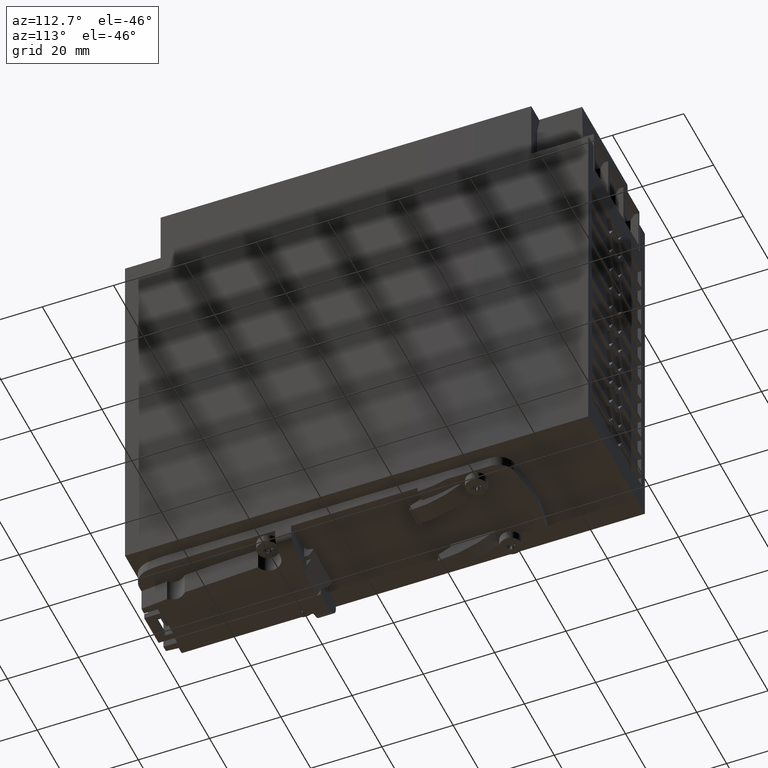
[diagram: clean part render]
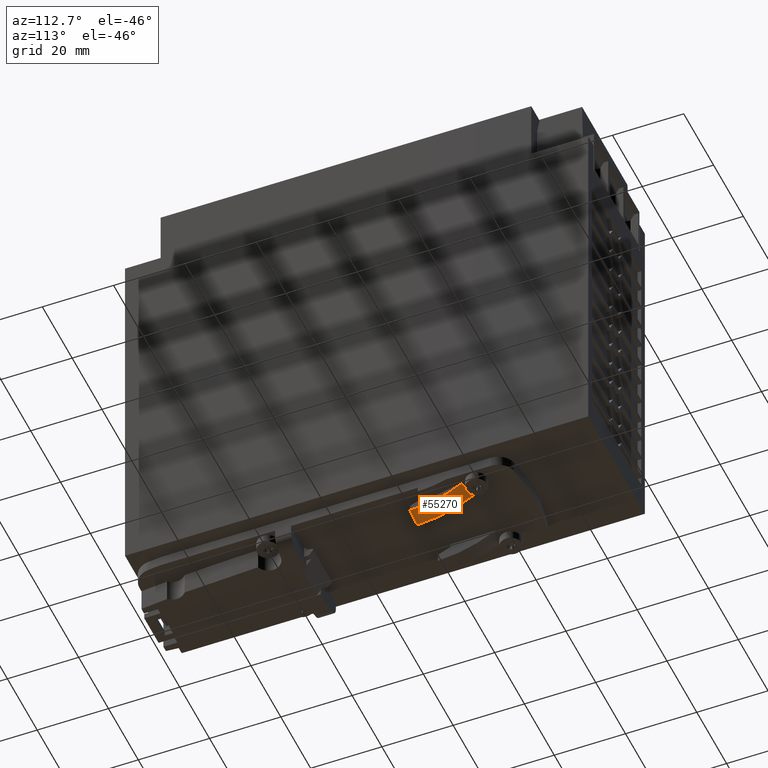
[diagram: same view with one face highlighted and labeled with its STEP entity id]
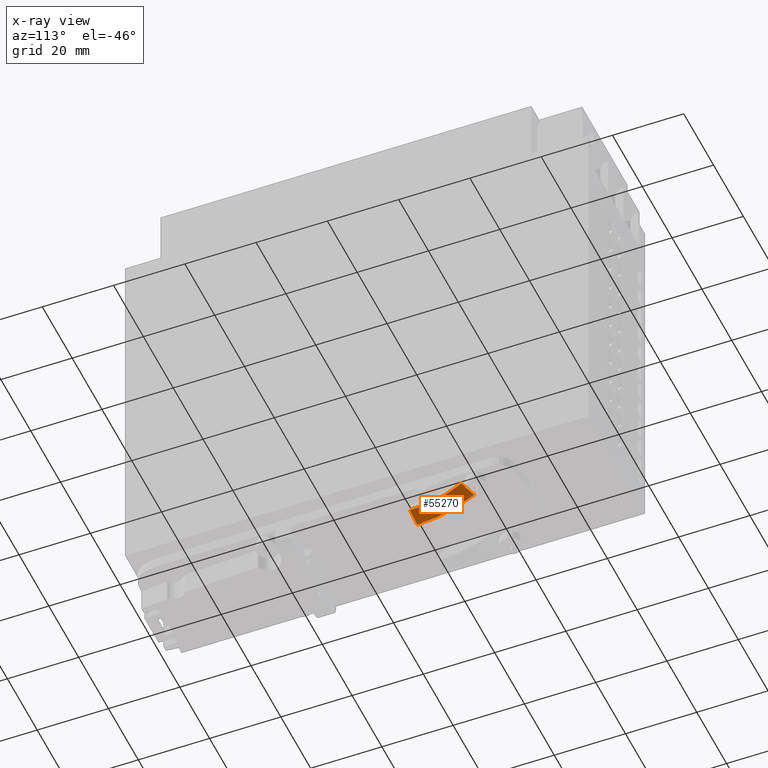
[diagram: x-ray of the same camera — body ghosted, the highlighted face saturated]
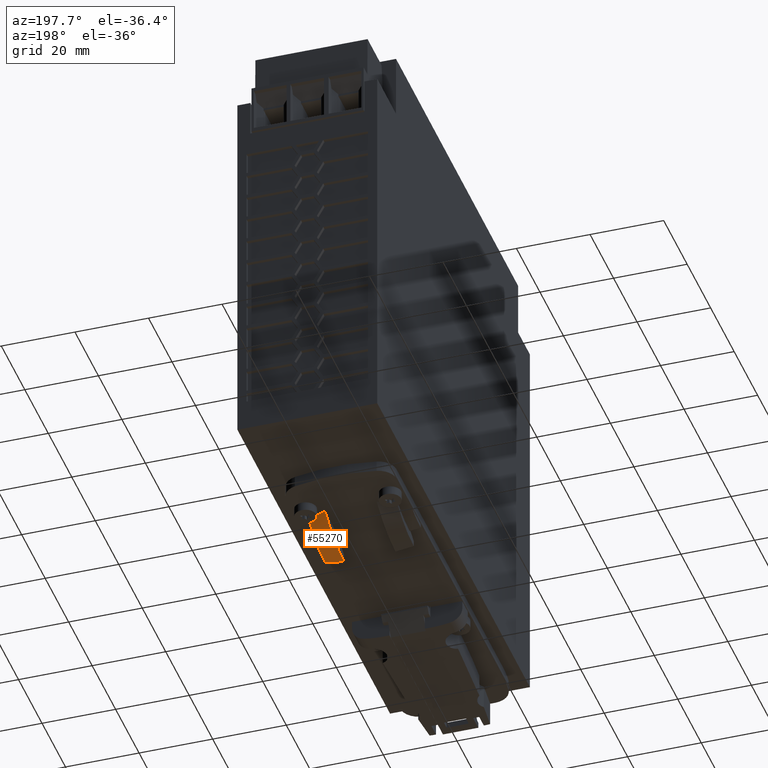
[diagram: same view with one face highlighted and labeled with its STEP entity id]
A machine part, auxiliary view. The second image highlights one B-rep face of the part: STEP entity #55270.
The next image is the same camera in x-ray: the body ghosted, the highlighted face saturated — about 0% of this face is hidden behind the body in this view.
A second angle (auxiliary view) of the same face is appended — the face is thin or edge-on in the first view.
In plain terms, the highlighted face is a freeform B-spline surface patch.
Its self-contained STEP definition (entity closure, byte-faithful):
#20160=CARTESIAN_POINT('',(29.9990428940869,-7.14956815838404,
52.1511138754406));
#20170=VERTEX_POINT('',#20160);
#20680=CARTESIAN_POINT('',(29.9988432689198,-2.99999999999322,
37.629561718788));
#20690=VERTEX_POINT('',#20680);
#20720=CARTESIAN_POINT('',(29.9988432689198,-2.99999999999322,
37.629561718788));
#20730=CARTESIAN_POINT('',(29.9988435010103,-3.01061329289596,
37.6464449306892));
#20740=CARTESIAN_POINT('',(29.9988437911244,-3.02387979335336,
37.6675490187684));
#20750=CARTESIAN_POINT('',(29.9988441392579,-3.03979999165183,
37.692873673901));
#20760=CARTESIAN_POINT('',(29.998844371353,-3.05041275244708,
37.7097572195255));
#20770=CARTESIAN_POINT('',(29.9988450099519,-3.07955860989106,
37.7562115232163));
#20780=CARTESIAN_POINT('',(29.9988465217577,-3.14817094458048,
37.8661864657901));
#20790=CARTESIAN_POINT('',(29.9988497904429,-3.29448756481804,
38.103964016374));
#20800=CARTESIAN_POINT('',(29.9988544955177,-3.49929214509798,
38.4462304265503));
#20810=CARTESIAN_POINT('',(29.998860197564,-3.73813166517722,
38.8610206225314));
#20820=CARTESIAN_POINT('',(29.9988659552992,-3.9699080460308,
39.2798618618126));
#20830=CARTESIAN_POINT('',(29.9988717676798,-4.19445598430107,
39.7026782307787));
#20840=CARTESIAN_POINT('',(29.9988776337045,-4.41162122924231,
40.1293968866747));
#20850=CARTESIAN_POINT('',(29.9988835515825,-4.62123093929096,
40.5598875699331));
#20860=CARTESIAN_POINT('',(29.9988895191878,-4.82311355697181,
40.9939956178396));
#20870=CARTESIAN_POINT('',(29.9988955349365,-5.01713089167601,
41.4316058125422));
#20880=CARTESIAN_POINT('',(29.9989015972212,-5.20315564370554,
41.8726012247851));
#20890=CARTESIAN_POINT('',(29.99890770519,-5.38109184470223,
42.3169198909964));
#20900=CARTESIAN_POINT('',(29.9989138576633,-5.55084255780733,
42.7644759935697));
#20910=CARTESIAN_POINT('',(29.9989200528304,-5.71230209732213,
43.2151378163429));
#20920=CARTESIAN_POINT('',(29.9989262887723,-5.86537448283512,
43.6687657737252));
#20930=CARTESIAN_POINT('',(29.9989325628827,-6.00996145547079,
44.1251702516775));
#20940=CARTESIAN_POINT('',(29.9989388730794,-6.14599167570736,
44.5841997998722));
#20950=CARTESIAN_POINT('',(29.9989452171935,-6.27340467202629,
45.0456966450311));
#20960=CARTESIAN_POINT('',(29.9989515930013,-6.39215213262768,
45.5094990134421));
#20970=CARTESIAN_POINT('',(29.9989579982331,-6.502197858576,
45.9754418034408));
#20980=CARTESIAN_POINT('',(29.9989644299534,-6.60350812207608,
46.4433114807591));
#20990=CARTESIAN_POINT('',(29.9989708858526,-6.69607490146033,
46.9129400256928));
#21000=CARTESIAN_POINT('',(29.9989773636303,-6.77990270145689,
47.3841601059883));
#21010=CARTESIAN_POINT('',(29.9989838616125,-6.85501385834644,
47.8568499409711));
#21020=CARTESIAN_POINT('',(29.9989903780519,-6.92143913156962,
48.3308824259237));
#21030=CARTESIAN_POINT('',(29.9989969106229,-6.97921211703975,
48.8060883927318));
#21040=CARTESIAN_POINT('',(29.9990034569327,-7.02837726203661,
49.282293775189));
#21050=CARTESIAN_POINT('',(29.9990100141919,-7.06898878952293,
49.7592956616497));
#21060=CARTESIAN_POINT('',(29.9990165804066,-7.10111715123689,
50.2369490112174));
#21070=CARTESIAN_POINT('',(29.9990231535081,-7.12484039362435,
50.7151033300489));
#21080=CARTESIAN_POINT('',(29.9990286352208,-7.1376784198465,
51.1138655610219));
#21090=CARTESIAN_POINT('',(29.9990324735701,-7.1430671954349,
51.3930828112759));
#21100=CARTESIAN_POINT('',(29.9990343930246,-7.14486828455967,
51.5327117936706));
#21110=CARTESIAN_POINT('',(29.999035352796,-7.1455455135256,
51.6025294900592));
#21120=CARTESIAN_POINT('',(29.9990358326893,-7.14582933711426,
51.6374388960961));
#21130=CARTESIAN_POINT('',(29.999036106916,-7.14597434926229,
51.6573872706393));
#21140=CARTESIAN_POINT('',(29.9990365182584,-7.14619200815438,
51.6873099990598));
#21150=CARTESIAN_POINT('',(29.9990371352731,-7.1465185894723,
51.732194173951));
#21160=CARTESIAN_POINT('',(29.9990382321892,-7.14709921949189,
51.8119883458737));
#21170=CARTESIAN_POINT('',(29.9990401517938,-7.14811555010448,
51.9516282479859));
#21180=CARTESIAN_POINT('',(29.9990417971694,-7.14898702210077,
52.0713196073887));
#21190=CARTESIAN_POINT('',(29.9990428940869,-7.14956815838404,
52.1511138754406));
#21200=B_SPLINE_CURVE_WITH_KNOTS('',3,(#20720,#20730,#20740,#20750,
#20760,#20770,#20780,#20790,#20800,#20810,#20820,#20830,#20840,#20850,
#20860,#20870,#20880,#20890,#20900,#20910,#20920,#20930,#20940,#20950,
#20960,#20970,#20980,#20990,#21000,#21010,#21020,#21030,#21040,#21050,
#21060,#21070,#21080,#21090,#21100,#21110,#21120,#21130,#21140,#21150,
#21160,#21170,#21180,#21190),.UNSPECIFIED.,.F.,.F.,(4,1,1,1,1,1,1,1,1,1,
1,1,1,1,1,1,1,1,1,1,1,1,1,1,1,1,1,1,1,1,1,1,1,1,1,1,1,1,1,1,1,1,1,1,1,4)
,(0.,0.003905600555611,0.004882000751247,0.005858400886435,
0.007811200857041,0.015622386329965,0.031244696350425,0.062489243067203,
0.093734725051775,0.124980628209155,0.156235787937612,0.187490835399581,
0.218747684398216,0.250004562597735,0.281248862206703,0.312493153012304,
0.343737010302043,0.374980869880632,0.406233566534538,0.43748626272193,
0.468739123164705,0.499991983641099,0.531245048498542,0.562498116282856,
0.59375101659384,0.625003920680431,0.656247411611433,0.687490895739307,
0.718734821069548,0.749978757727738,0.78123084895685,0.812482889705592,
0.843733115987652,0.874983533566115,0.906236631516764,0.937489015284193,
0.953116417651247,0.960930269401447,0.964837209711532,0.966790681863402,
0.967767418256293,0.968744154674818,0.972651132274918,0.976558110054992,
0.984372067597968,1.),.UNSPECIFIED.);
#21210=EDGE_CURVE('',#20690,#20170,#21200,.T.);
#39700=CARTESIAN_POINT('',(24.9988224125072,-2.9999999999933,
36.1124152225848));
#39710=VERTEX_POINT('',#39700);
#39740=CARTESIAN_POINT('',(24.9988224125072,-2.99999999999117,
36.1124152225856));
#39750=CARTESIAN_POINT('',(24.9992351648935,-2.99999999999117,
36.1125174724464));
#39760=CARTESIAN_POINT('',(25.0000602118053,-2.99999999999117,
36.1127238174296));
#39770=CARTESIAN_POINT('',(25.0017104407931,-2.99999999999117,
36.1131359607082));
#39780=CARTESIAN_POINT('',(25.0045982703319,-2.99999999999117,
36.1138575109033));
#39790=CARTESIAN_POINT('',(25.0103739853935,-2.99999999999117,
36.1153003987599));
#39800=CARTESIAN_POINT('',(25.0219252524021,-2.99999999999117,
36.1181868587105));
#39810=CARTESIAN_POINT('',(25.0450281063023,-2.99999999999117,
36.1239585565535));
#39820=CARTESIAN_POINT('',(25.07143152094,-2.99999999999117,
36.1305553079892));
#39830=CARTESIAN_POINT('',(25.0978351252559,-2.99999999999117,
36.1371524325715));
#39840=CARTESIAN_POINT('',(25.1242394728204,-2.99999999999117,
36.143748804899));
#39850=CARTESIAN_POINT('',(25.1572414024179,-2.99999999999117,
36.1520115383169));
#39860=CARTESIAN_POINT('',(25.1968357713206,-2.99999999999117,
36.1619610841058));
#39870=CARTESIAN_POINT('',(25.2496185124795,-2.99999999999117,
36.175270237287));
#39880=CARTESIAN_POINT('',(25.3947373406217,-2.99999999999117,
36.2120511924231));
#39890=CARTESIAN_POINT('',(25.5792542201574,-2.99999999999117,
36.2596234820126));
#39900=CARTESIAN_POINT('',(25.7898717376904,-2.99999999999117,
36.3150253613193));
#39910=CARTESIAN_POINT('',(26.0003262995972,-2.99999999999117,
36.3711206999372));
#39920=CARTESIAN_POINT('',(26.368179402802,-2.99999999999117,
36.4711019151905));
#39930=CARTESIAN_POINT('',(26.8923011877332,-2.99999999999117,
36.6190819076572));
#39940=CARTESIAN_POINT('',(27.7277553424658,-2.99999999999117,
36.8667555128773));
#39950=CARTESIAN_POINT('',(28.5582776557125,-2.99999999999117,
37.1306728032392));
#39960=CARTESIAN_POINT('',(29.2802534714789,-2.99999999999117,
37.3755691924934));
#39970=CARTESIAN_POINT('',(29.6142885982386,-2.99999999999117,
37.4924729112095));
#39980=CARTESIAN_POINT('',(29.7553934735664,-2.99999999999117,
37.5424895170738));
#39990=CARTESIAN_POINT('',(29.8066783143353,-2.99999999999117,
37.560738152824));
#40000=CARTESIAN_POINT('',(29.8451306294573,-2.99999999999117,
37.5744540283755));
#40010=CARTESIAN_POINT('',(29.8835703235405,-2.99999999999117,
37.5882029051947));
#40020=CARTESIAN_POINT('',(29.9155936853559,-2.99999999999117,
37.5996846996377));
#40030=CARTESIAN_POINT('',(29.9412089955061,-2.99999999999117,
37.608878605965));
#40040=CARTESIAN_POINT('',(29.9604206282244,-2.99999999999117,
37.6157724277896));
#40050=CARTESIAN_POINT('',(29.9764300190944,-2.99999999999117,
37.6215181109886));
#40060=CARTESIAN_POINT('',(29.9876368272255,-2.99999999999117,
37.6255394220741));
#40070=CARTESIAN_POINT('',(29.9932401173384,-2.99999999999117,
37.6275503852935));
#40080=CARTESIAN_POINT('',(29.9960418141348,-2.99999999999117,
37.6285557513011));
#40090=CARTESIAN_POINT('',(29.9976427554712,-2.99999999999117,
37.6291303811261));
#40100=CARTESIAN_POINT('',(29.9984433534834,-2.99999999999117,
37.6294173827374));
#40110=CARTESIAN_POINT('',(29.9988433454589,-2.99999999999117,
37.629561743187));
#40120=B_SPLINE_CURVE_WITH_KNOTS('',3,(#39740,#39750,#39760,#39770,
#39780,#39790,#39800,#39810,#39820,#39830,#39840,#39850,#39860,#39870,
#39880,#39890,#39900,#39910,#39920,#39930,#39940,#39950,#39960,#39970,
#39980,#39990,#40000,#40010,#40020,#40030,#40040,#40050,#40060,#40070,
#40080,#40090,#40100,#40110),.UNSPECIFIED.,.F.,.F.,(4,1,1,1,1,1,1,1,1,1,
1,1,1,1,1,1,1,1,1,1,1,1,1,1,1,1,1,1,1,1,1,1,1,1,1,4),(0.,
0.000244037985385,0.000488076225778,0.000976152999125,0.001952307130475,
0.003904616562713,0.007809237726097,0.01561848490856,0.019523263645807,
0.023428042356149,0.031237598729752,0.039047606663914,0.046857615066748,
0.06247763802774,0.124964388049168,0.156213350869904,0.187462278490376,
0.2499604171453,0.374981011408978,0.500003505166397,0.750040847944962,
0.875035739136489,0.937522370320862,0.953142382936274,0.960952386788645,
0.968762390658637,0.976571943563216,0.98438149652128,0.988286120546543,
0.992190744594559,0.996095366606797,0.998047676530696,0.999023831036355,
0.999511908054371,0.999755952598848,1.),.UNSPECIFIED.);
#40130=EDGE_CURVE('',#39710,#20690,#40120,.T.);
#45080=CARTESIAN_POINT('',(24.9990428945593,-7.79471743008126,
52.1511826095418));
#45090=VERTEX_POINT('',#45080);
#45120=CARTESIAN_POINT('',(24.9988224125072,-2.9999999999939,
36.1124152225856));
#45130=CARTESIAN_POINT('',(24.9988226717879,-3.01142232041816,
36.1312763623089));
#45140=CARTESIAN_POINT('',(24.9988229958903,-3.02570003974582,
36.1548528958294));
#45150=CARTESIAN_POINT('',(24.9988233848082,-3.04283389256242,
36.1831443776175));
#45160=CARTESIAN_POINT('',(24.9988236440964,-3.05425530682369,
36.2020060604884));
#45170=CARTESIAN_POINT('',(24.9988243574652,-3.08562484164349,
36.2538994330926));
#45180=CARTESIAN_POINT('',(24.9988260458956,-3.15949513861489,
36.3767227699221));
#45190=CARTESIAN_POINT('',(24.9988296944813,-3.31714741720972,
36.6421358373147));
#45200=CARTESIAN_POINT('',(24.9988370391166,-3.62659677396191,
37.1764146872517));
#45210=CARTESIAN_POINT('',(24.9988476667802,-4.05164992519633,
37.9495144600847));
#45220=CARTESIAN_POINT('',(24.9988606282719,-4.53331682724865,
38.8923864450674));
#45230=CARTESIAN_POINT('',(24.9988737896111,-4.98544915599281,
39.8497961603693));
#45240=CARTESIAN_POINT('',(24.9988871404965,-5.40690614688261,
40.8209942316438));
#45250=CARTESIAN_POINT('',(24.9989006716994,-5.79664482589162,
41.8053093506404));
#45260=CARTESIAN_POINT('',(24.998912090021,-6.09415550281367,
42.635924819522));
#45270=CARTESIAN_POINT('',(24.9989201521534,-6.2876538661997,
43.2223973449472));
#45280=CARTESIAN_POINT('',(24.9989247780456,-6.39394791598634,
43.5589036912257));
#45290=CARTESIAN_POINT('',(24.9989317350039,-6.54907252702389,
44.0649813250255));
#45300=CARTESIAN_POINT('',(24.9989422387323,-6.76555003301492,
44.8290655451052));
#45310=CARTESIAN_POINT('',(24.998956369541,-7.01915346894056,
45.8569984400956));
#45320=CARTESIAN_POINT('',(24.9989706103737,-7.23746349313078,
46.892934926112));
#45330=CARTESIAN_POINT('',(24.9989849451053,-7.42030794315941,
47.9357020102822));
#45340=CARTESIAN_POINT('',(24.9989993579374,-7.56760224022943,
48.9841504351152));
#45350=CARTESIAN_POINT('',(24.9990138318685,-7.67934292384544,
50.0370434587061));
#45360=CARTESIAN_POINT('',(24.9990247202305,-7.73655237094287,
50.8291075035835));
#45370=CARTESIAN_POINT('',(24.9990313815906,-7.76140949649314,
51.313682119251));
#45380=CARTESIAN_POINT('',(24.9990335019193,-7.76835655727946,
51.46792350617));
#45390=CARTESIAN_POINT('',(24.9990347136932,-7.77205177526621,
51.5560729035861));
#45400=CARTESIAN_POINT('',(24.9990353953761,-7.77402679083462,
51.6056613082664));
#45410=CARTESIAN_POINT('',(24.9990358498554,-7.77530147578216,
51.6387219943382));
#45420=CARTESIAN_POINT('',(24.999036152853,-7.77613770507046,
51.6607632785433));
#45430=CARTESIAN_POINT('',(24.9990366831,-7.77759835247169,
51.699335621612));
#45440=CARTESIAN_POINT('',(24.999037743593,-7.78052159584524,
51.7764802253586));
#45450=CARTESIAN_POINT('',(24.9990398645793,-7.78636667560395,
51.9307694511484));
#45460=CARTESIAN_POINT('',(24.9990416825672,-7.79137719910791,
52.0630173354393));
#45470=CARTESIAN_POINT('',(24.999042894559,-7.7947174292471,
52.1511825874827));
#45480=B_SPLINE_CURVE_WITH_KNOTS('',3,(#45120,#45130,#45140,#45150,
#45160,#45170,#45180,#45190,#45200,#45210,#45220,#45230,#45240,#45250,
#45260,#45270,#45280,#45290,#45300,#45310,#45320,#45330,#45340,#45350,
#45360,#45370,#45380,#45390,#45400,#45410,#45420,#45430,#45440,#45450,
#45460,#45470),.UNSPECIFIED.,.F.,.F.,(4,1,1,1,1,1,1,1,1,1,1,1,1,1,1,1,1,
1,1,1,1,1,1,1,1,1,1,1,1,1,1,1,1,4),(0.,0.003905691814249,
0.004882114619723,0.005858537386379,0.007811382691671,0.015622753529238,
0.031245441977152,0.062490790898658,0.124981931307613,0.18748926784322,
0.250000150669739,0.312493134820961,0.374981915788139,0.437485853585274,
0.468738956757549,0.484365570544483,0.499992338213557,0.562495130276261,
0.625001415872004,0.687491252447504,0.749980963849036,0.812485629742547,
0.874987276604115,0.937489899735915,0.95311730933034,0.960930987527277,
0.964837830100685,0.968744666502205,0.969721396459829,0.970698126050165,
0.972651584992756,0.976558502585919,0.98437233657766,1.),.UNSPECIFIED.);
#45490=EDGE_CURVE('',#39710,#45090,#45480,.T.);
#54160=CARTESIAN_POINT('',(35.4321499074945,-5.97193078060742,
57.3079526308374));
#54170=CARTESIAN_POINT('',(33.5659748472401,-6.38936042861325,
57.3062800355219));
#54180=CARTESIAN_POINT('',(31.6997997869858,-6.80679007661912,
57.3046074402065));
#54190=CARTESIAN_POINT('',(28.3070279505317,-7.56569184506422,
57.3015666031485));
#54200=CARTESIAN_POINT('',(26.6901908300541,-7.8122564827652,
57.3003751734612));
#54210=CARTESIAN_POINT('',(23.2515071491761,-8.17312629185992,
57.2979940558701));
#54220=CARTESIAN_POINT('',(21.349697895321,-8.37271008788914,
57.2966771474571));
#54230=CARTESIAN_POINT('',(19.4478886414659,-8.57229388391834,
57.295360239044));
#54240=CARTESIAN_POINT('',(35.453040619348,-6.05724139879501,
55.2489337508912));
#54250=CARTESIAN_POINT('',(33.5763657756712,-6.44111271368065,
55.2801378787246));
#54260=CARTESIAN_POINT('',(31.6996909319944,-6.82498402856627,
55.3113420065579));
#54270=CARTESIAN_POINT('',(28.3070814574602,-7.51893773305104,
55.3677521087601));
#54280=CARTESIAN_POINT('',(26.6910027756244,-7.7515192384192,
55.3932936514194));
#54290=CARTESIAN_POINT('',(23.2530311853533,-8.09073841993675,
55.4426514109713));
#54300=CARTESIAN_POINT('',(21.3495422116902,-8.27855264548209,
55.4699791385586));
#54310=CARTESIAN_POINT('',(19.4460532380271,-8.46636687102744,
55.497306866146));
#54320=CARTESIAN_POINT('',(35.4705584957009,-6.14398788000289,
53.1892877544852));
#54330=CARTESIAN_POINT('',(33.5850702863519,-6.49358293025817,
53.2536821636973));
#54340=CARTESIAN_POINT('',(31.699582077003,-6.84317798051345,
53.3180765729093));
#54350=CARTESIAN_POINT('',(28.3071349643887,-7.47218362103787,
53.4339376143717));
#54360=CARTESIAN_POINT('',(26.6918147211948,-7.69078199407321,
53.4862121293775));
#54370=CARTESIAN_POINT('',(23.2545552215304,-8.00835054801355,
53.5873087660725));
#54380=CARTESIAN_POINT('',(21.3501251464507,-8.18430092507486,
53.6433218414397));
#54390=CARTESIAN_POINT('',(19.445695071371,-8.36025130213619,
53.6993349168069));
#54400=CARTESIAN_POINT('',(35.5061535998299,-6.35036189251381,
49.4195960807017));
#54410=CARTESIAN_POINT('',(33.602747319949,-6.61903220768566,
49.3252735830746));
#54420=CARTESIAN_POINT('',(31.6993410400681,-6.8877025228575,
49.2309510854475));
#54430=CARTESIAN_POINT('',(28.3072559082845,-7.36650339216168,
49.0628577334525));
#54440=CARTESIAN_POINT('',(26.6937302656003,-7.54749050649493,
48.9870197282582));
#54450=CARTESIAN_POINT('',(23.2583761635892,-7.80004534759298,
48.8403629082844));
#54460=CARTESIAN_POINT('',(21.3504087349838,-7.94031223026152,
48.7589109160344));
#54470=CARTESIAN_POINT('',(19.4424413063784,-8.08057911293005,
48.6774589237844));
#54480=CARTESIAN_POINT('',(35.459752803453,-5.94829819695358,
45.2950027268063));
#54490=CARTESIAN_POINT('',(33.5740625069638,-6.11310752753573,
44.9571342902899));
#54500=CARTESIAN_POINT('',(31.6883722104746,-6.27791685811787,
44.6192658537735));
#54510=CARTESIAN_POINT('',(28.3180456703624,-6.57248339534473,
44.0153878146397));
#54520=CARTESIAN_POINT('',(26.7098465613388,-6.68591233525843,
43.7671940450033));
#54530=CARTESIAN_POINT('',(23.2748649747241,-6.83921185830175,
43.3314464966594));
#54540=CARTESIAN_POINT('',(21.3818538591632,-6.92369490247934,
43.0913069408004));
#54550=CARTESIAN_POINT('',(19.4888427436024,-7.00817794665692,
42.8511673849415));
#54560=CARTESIAN_POINT('',(35.3214611918591,-4.27137928670373,
41.4701251351835));
#54570=CARTESIAN_POINT('',(33.4984355649361,-4.3126945947023,
40.9131332900333));
#54580=CARTESIAN_POINT('',(31.6754099380131,-4.35400990270086,
40.3561414448832));
#54590=CARTESIAN_POINT('',(28.3308320841665,-4.42980821409932,
39.3342673897135));
#54600=CARTESIAN_POINT('',(26.7278874601698,-4.45892010889781,
38.9215131057155));
#54610=CARTESIAN_POINT('',(23.2921719087862,-4.50628942506713,
38.204661310418));
#54620=CARTESIAN_POINT('',(21.433970452528,-4.53190904664855,
37.8169531226996));
#54630=CARTESIAN_POINT('',(19.5757689962697,-4.55752866822994,
37.4292449349811));
#54640=CARTESIAN_POINT('',(35.1783066087611,-2.19848140821082,
38.2697338993303));
#54650=CARTESIAN_POINT('',(33.4246971699203,-2.17340280327403,
37.5814153952147));
#54660=CARTESIAN_POINT('',(31.6710877310795,-2.14832419833724,
36.893096891099));
#54670=CARTESIAN_POINT('',(28.3350376268425,-2.10061489616286,
35.5836462423154));
#54680=CARTESIAN_POINT('',(26.7338145377528,-2.08229146072226,
35.0506276013631));
#54690=CARTESIAN_POINT('',(23.2978221375046,-2.05248573584012,
34.1030966546817));
#54700=CARTESIAN_POINT('',(21.4816530359579,-2.03673126659965,
33.6022584025372));
#54710=CARTESIAN_POINT('',(19.6654839344112,-2.0209767973592,
33.1014201503928));
#54720=CARTESIAN_POINT('',(35.2002998814345,-1.07379962330497,
36.5529567707959));
#54730=CARTESIAN_POINT('',(33.4347516327032,-1.07569003399457,
35.8813223309098));
#54740=CARTESIAN_POINT('',(31.669203383972,-1.07758044468416,
35.2096878910236));
#54750=CARTESIAN_POINT('',(28.3368783541309,-1.08114843715456,
33.9420339163763));
#54760=CARTESIAN_POINT('',(26.7363024777559,-1.08468186248545,
33.4257912872077));
#54770=CARTESIAN_POINT('',(23.3000101268595,-1.09896955719795,
32.5075783782826));
#54780=CARTESIAN_POINT('',(21.4779469642269,-1.10654547902188,
32.0207042284828));
#54790=CARTESIAN_POINT('',(19.6558838015943,-1.11412140084583,
31.533830078683));
#54800=CARTESIAN_POINT('',(35.2208253332329,0.051714374191112,
34.8349647330811));
#54810=CARTESIAN_POINT('',(33.4440721850487,0.022438841580003,
34.1806218120147));
#54820=CARTESIAN_POINT('',(31.6673190368644,-0.006836691031092,
33.5262788909482));
#54830=CARTESIAN_POINT('',(28.3387190814192,-0.061681978146263,
32.3004215904371));
#54840=CARTESIAN_POINT('',(26.738790417759,-0.087072264248642,
31.8009549730523));
#54850=CARTESIAN_POINT('',(23.3021981162144,-0.145453378555773,
30.9120601018835));
#54860=CARTESIAN_POINT('',(21.4748122932637,-0.176497160084638,
30.4393959790728));
#54870=CARTESIAN_POINT('',(19.6474264703131,-0.207540941613496,
29.9667318562621));
#54880=B_SPLINE_SURFACE_WITH_KNOTS('',3,3,((#54160,#54240,#54320,#54400,
#54480,#54560,#54640,#54720,#54800),(#54170,#54250,#54330,#54410,#54490,
#54570,#54650,#54730,#54810),(#54180,#54260,#54340,#54420,#54500,#54580,
#54660,#54740,#54820),(#54190,#54270,#54350,#54430,#54510,#54590,#54670,
#54750,#54830),(#54200,#54280,#54360,#54440,#54520,#54600,#54680,#54760,
#54840),(#54210,#54290,#54370,#54450,#54530,#54610,#54690,#54770,#54850)
,(#54220,#54300,#54380,#54460,#54540,#54620,#54700,#54780,#54860),(
#54230,#54310,#54390,#54470,#54550,#54630,#54710,#54790,#54870)),
.UNSPECIFIED.,.F.,.F.,.F.,(4,2,2,4),(4,2,1,2,4),(0.,0.343151602324665,
0.652808381016149,1.),(0.,0.204454858458259,0.501283519505798,
0.798112166135402,1.),.UNSPECIFIED.);
#54890=ORIENTED_EDGE('',*,*,#21210,.T.);
#54900=ORIENTED_EDGE('',*,*,#40130,.T.);
#54910=ORIENTED_EDGE('',*,*,#45490,.F.);
#54920=CARTESIAN_POINT('',(29.9990428940869,-7.14956815838405,
52.1511138754406));
#54930=CARTESIAN_POINT('',(29.9982342111067,-7.14970858114808,
52.1511138865575));
#54940=CARTESIAN_POINT('',(29.9966163050148,-7.14998630767631,
52.1511139087985));
#54950=CARTESIAN_POINT('',(29.9933810567563,-7.15054502295783,
52.1511139532729));
#54960=CARTESIAN_POINT('',(29.9877191075888,-7.1515212547517,
52.1511140311067));
#54970=CARTESIAN_POINT('',(29.9763953921707,-7.1534747885397,
52.1511141867717));
#54980=CARTESIAN_POINT('',(29.9537478059051,-7.15738098636573,
52.1511144981041));
#54990=CARTESIAN_POINT('',(29.9278649332292,-7.16184585184246,
52.1511148539113));
#55000=CARTESIAN_POINT('',(29.9019818005131,-7.16630936923965,
52.1511152097221));
#55010=CARTESIAN_POINT('',(29.8760967855285,-7.1707622530005,
52.1511155655587));
#55020=CARTESIAN_POINT('',(29.8049065218439,-7.18297175808336,
52.1511165441985));
#55030=CARTESIAN_POINT('',(29.6365873749553,-7.2115371876581,
52.1511188580515));
#55040=CARTESIAN_POINT('',(29.2737982024443,-7.27155257842453,
52.151123845249));
#55050=CARTESIAN_POINT('',(28.5472346163511,-7.38554769136345,
52.1511338331881));
#55060=CARTESIAN_POINT('',(27.5066202000086,-7.53121923948456,
52.1511481383273));
#55070=CARTESIAN_POINT('',(26.4630991511149,-7.65413639211221,
52.1511624834237));
#55080=CARTESIAN_POINT('',(25.7313913628877,-7.7283338938152,
52.1511725420791));
#55090=CARTESIAN_POINT('',(25.3653016115252,-7.76248237565069,
52.1511775746491));
#55100=CARTESIAN_POINT('',(25.1952702563254,-7.77765455846997,
52.1511799120396));
#55110=CARTESIAN_POINT('',(25.116783312205,-7.78452629477467,
52.1511809909855));
#55120=CARTESIAN_POINT('',(25.08407850589,-7.78736727719,
52.1511814405726));
#55130=CARTESIAN_POINT('',(25.0579136125126,-7.78962793209223,
52.1511818002566));
#55140=CARTESIAN_POINT('',(25.0382900526111,-7.79132466811726,
52.1511820700182));
#55150=CARTESIAN_POINT('',(25.0219370548476,-7.7927382202658,
52.1511822948199));
#55160=CARTESIAN_POINT('',(25.0104899798363,-7.79372794124214,
52.1511824521808));
#55170=CARTESIAN_POINT('',(25.0047664037378,-7.79422253523437,
52.1511825308618));
#55180=CARTESIAN_POINT('',(25.0019046571137,-7.7944701990003,
52.1511825702017));
#55190=CARTESIAN_POINT('',(25.0002693056176,-7.79461112928214,
52.1511825926826));
#55200=CARTESIAN_POINT('',(24.9994517349778,-7.79468271325186,
52.1511826039216));
#55210=CARTESIAN_POINT('',(24.9990428402184,-7.79471743477434,
52.1511826095426));
#55220=B_SPLINE_CURVE_WITH_KNOTS('',3,(#54920,#54930,#54940,#54950,
#54960,#54970,#54980,#54990,#55000,#55010,#55020,#55030,#55040,#55050,
#55060,#55070,#55080,#55090,#55100,#55110,#55120,#55130,#55140,#55150,
#55160,#55170,#55180,#55190,#55200,#55210),.UNSPECIFIED.,.F.,.F.,(4,1,1,
1,1,1,1,1,1,1,1,1,1,1,1,1,1,1,1,1,1,1,1,1,1,1,1,4),(0.,0.000488272396971
,0.000976544988254,0.001953090365254,0.003906181510256,0.007812364566468
,0.015624732418807,0.019530931445017,0.023437130355008,0.031249527714843
,0.06249929419704,0.124999293994029,0.249999455114487,0.500000734908533,
0.750028072255999,0.875014433886327,0.937507565828199,0.968753800408328,
0.976565349291358,0.984376897974546,0.988282672280597,0.992188446588667,
0.996094219437323,0.998047105142965,0.999023547635843,0.999511779299192,
0.999755879145851,1.),.UNSPECIFIED.);
#55230=EDGE_CURVE('',#20170,#45090,#55220,.T.);
#55240=ORIENTED_EDGE('',*,*,#55230,.T.);
#55250=EDGE_LOOP('',(#55240,#54910,#54900,#54890));
#55260=FACE_OUTER_BOUND('',#55250,.T.);
#55270=ADVANCED_FACE('',(#55260),#54880,.T.);